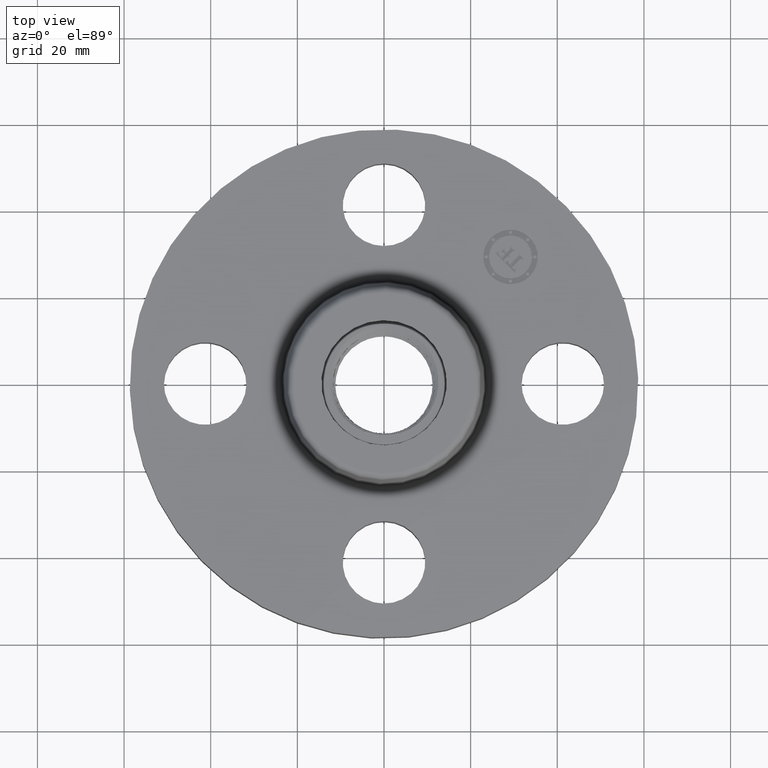
[diagram: clean part render]
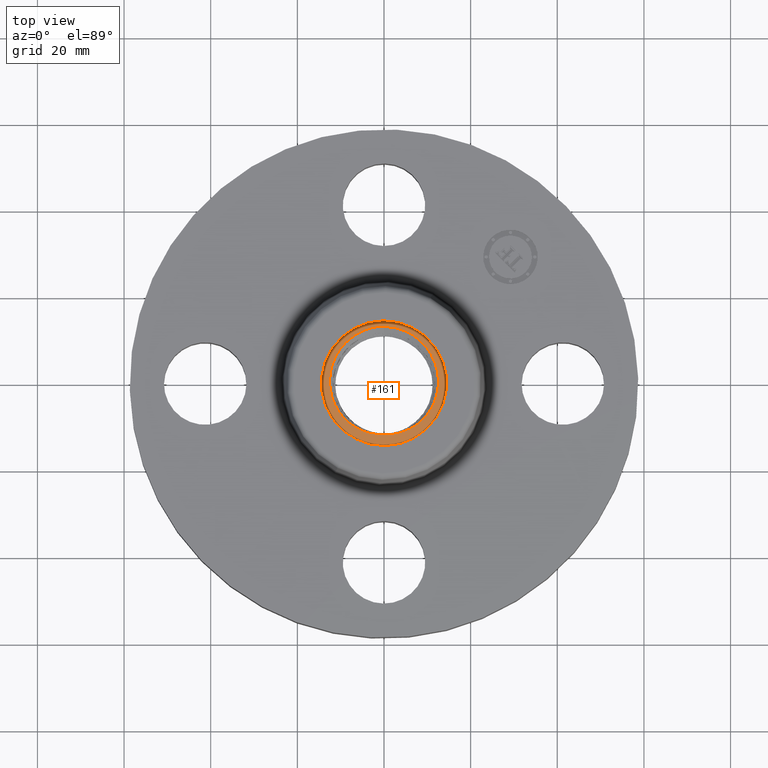
[diagram: same view with one face highlighted and labeled with its STEP entity id]
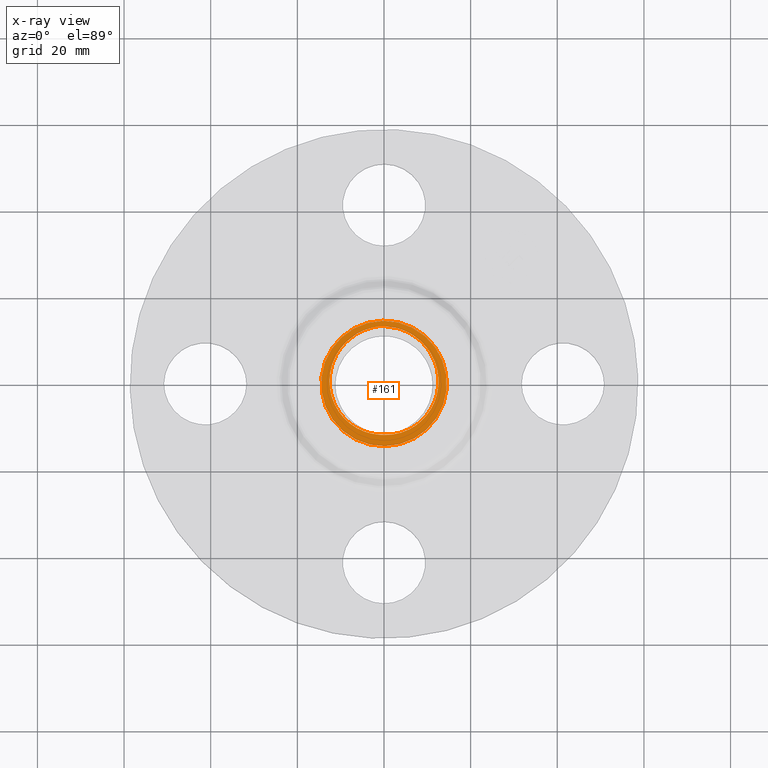
[diagram: x-ray of the same camera — body ghosted, the highlighted face saturated]
A machine part, top view. The second image highlights one B-rep face of the part: STEP entity #161.
The next image is the same camera in x-ray: the body ghosted, the highlighted face saturated — about 0% of this face is hidden behind the body in this view.
In plain terms, the highlighted planar face has unit normal (0, 0, 1).
Its self-contained STEP definition (entity closure, byte-faithful):
#38=AXIS2_PLACEMENT_3D('Plane Axis2P3D',#35,#36,#37) ;
#42=AXIS2_PLACEMENT_3D('Circle Axis2P3D',#40,#41,$) ;
#51=AXIS2_PLACEMENT_3D('Circle Axis2P3D',#49,#50,$) ;
#60=AXIS2_PLACEMENT_3D('Circle Axis2P3D',#58,#59,$) ;
#35=CARTESIAN_POINT('Axis2P3D Location',(1.92322098754E-017,-2.08057543197E-016,0.620000000002)) ;
#40=CARTESIAN_POINT('Axis2P3D Location',(0.,0.,0.620000000002)) ;
#44=CARTESIAN_POINT('Vertex',(-0.273272557005,0.50022206028,0.620000000002)) ;
#46=CARTESIAN_POINT('Vertex',(0.273272557005,-0.50022206028,0.620000000002)) ;
#49=CARTESIAN_POINT('Axis2P3D Location',(0.,0.,0.620000000002)) ;
#58=CARTESIAN_POINT('Axis2P3D Location',(8.91675185132E-017,1.74838271595E-018,0.620000000002)) ;
#62=CARTESIAN_POINT('Vertex',(-0.068839978589,-0.462087089928,0.620000369278)) ;
#64=CARTESIAN_POINT('Vertex',(-0.000898178339449,-0.467185819747,0.619999532507)) ;
#68=CARTESIAN_POINT('Control Point',(-0.246874648732,0.451904577731,0.620000000002)) ;
#69=CARTESIAN_POINT('Control Point',(-0.286886762116,0.428073842957,0.620000000002)) ;
#70=CARTESIAN_POINT('Control Point',(-0.324120647656,0.399765660782,0.620000000002)) ;
#71=CARTESIAN_POINT('Control Point',(-0.357892654681,0.367403258652,0.620000000002)) ;
#72=CARTESIAN_POINT('Control Point',(-0.417367399325,0.295716882805,0.620000000002)) ;
#73=CARTESIAN_POINT('Control Point',(-0.458982019344,0.212846321093,0.620000000002)) ;
#74=CARTESIAN_POINT('Control Point',(-0.47490507025,0.169278461644,0.620000000002)) ;
#75=CARTESIAN_POINT('Control Point',(-0.494276148442,0.0884506111846,0.620000000002)) ;
#76=CARTESIAN_POINT('Control Point',(-0.496660778963,0.00587605608425,0.620000000002)) ;
#77=CARTESIAN_POINT('Control Point',(-0.494322374897,-0.030755692729,0.620000000002)) ;
#78=CARTESIAN_POINT('Control Point',(-0.481489084201,-0.112076148046,0.620000000002)) ;
#79=CARTESIAN_POINT('Control Point',(-0.452185524238,-0.18886634889,0.620000000002)) ;
#80=CARTESIAN_POINT('Control Point',(-0.431040429284,-0.229332536847,0.620000000002)) ;
#81=CARTESIAN_POINT('Control Point',(-0.379827315566,-0.304424614107,0.620000000002)) ;
#82=CARTESIAN_POINT('Control Point',(-0.313003536653,-0.365360656011,0.620000000002)) ;
#83=CARTESIAN_POINT('Control Point',(-0.276223289394,-0.39169518772,0.620000000002)) ;
#84=CARTESIAN_POINT('Control Point',(-0.213555473893,-0.426195268053,0.620000000002)) ;
#85=CARTESIAN_POINT('Control Point',(-0.146132862422,-0.448271848675,0.620000000002)) ;
#86=CARTESIAN_POINT('Control Point',(-0.120639784493,-0.454688681232,0.620000000002)) ;
#87=CARTESIAN_POINT('Control Point',(-0.0948185216874,-0.459298425507,0.620000000002)) ;
#88=CARTESIAN_POINT('Control Point',(-0.068839884415,-0.462086547274,0.620000000002)) ;
#89=CARTESIAN_POINT('Vertex',(-0.246874648732,0.451904577731,0.620000000002)) ;
#93=CARTESIAN_POINT('Control Point',(-0.0410006483545,0.521404251777,0.620000000002)) ;
#94=CARTESIAN_POINT('Control Point',(-0.0846543580577,0.516358271891,0.620000000002)) ;
#95=CARTESIAN_POINT('Control Point',(-0.127698243751,0.506733058995,0.620000000002)) ;
#96=CARTESIAN_POINT('Control Point',(-0.169496933549,0.492611927267,0.620000000002)) ;
#97=CARTESIAN_POINT('Control Point',(-0.209404054129,0.474221614358,0.620000000002)) ;
#98=CARTESIAN_POINT('Control Point',(-0.246874648732,0.451904577731,0.620000000002)) ;
#99=CARTESIAN_POINT('Vertex',(-0.0410006483545,0.521404251777,0.620000000002)) ;
#103=CARTESIAN_POINT('Control Point',(-0.0410006483545,0.521404251777,0.620000000002)) ;
#104=CARTESIAN_POINT('Control Point',(-0.0328024593148,0.521776407967,0.620000000002)) ;
#105=CARTESIAN_POINT('Control Point',(-0.0245994759223,0.521987545749,0.620000000002)) ;
#106=CARTESIAN_POINT('Control Point',(-0.0163903534695,0.522037517245,0.620000000002)) ;
#107=CARTESIAN_POINT('Control Point',(-0.0081904189629,0.521926289061,0.620000000002)) ;
#108=CARTESIAN_POINT('Control Point',(1.69015948756E-006,0.521654154517,0.620000000002)) ;
#109=CARTESIAN_POINT('Vertex',(1.69015948752E-006,0.521654154517,0.620000000002)) ;
#113=CARTESIAN_POINT('Control Point',(1.69015948747E-006,0.521654154517,0.620000000002)) ;
#114=CARTESIAN_POINT('Control Point',(0.0468492614383,0.520097920164,0.620000000002)) ;
#115=CARTESIAN_POINT('Control Point',(0.0934409460576,0.513279597306,0.620000000002)) ;
#116=CARTESIAN_POINT('Control Point',(0.138979565603,0.501235788199,0.620000000002)) ;
#117=CARTESIAN_POINT('Control Point',(0.226384868484,0.46714218156,0.620000000002)) ;
#118=CARTESIAN_POINT('Control Point',(0.30366173971,0.414564695279,0.620000000002)) ;
#119=CARTESIAN_POINT('Control Point',(0.339076609563,0.384031918595,0.620000000002)) ;
#120=CARTESIAN_POINT('Control Point',(0.402203713653,0.315590744163,0.620000000002)) ;
#121=CARTESIAN_POINT('Control Point',(0.448124593817,0.234963260779,0.620000000002)) ;
#122=CARTESIAN_POINT('Control Point',(0.466316103219,0.192262737431,0.620000000002)) ;
#123=CARTESIAN_POINT('Control Point',(0.492522393333,0.103625939105,0.620000000002)) ;
#124=CARTESIAN_POINT('Control Point',(0.497890258999,0.0117178858739,0.620000000002)) ;
#125=CARTESIAN_POINT('Control Point',(0.495238542506,-0.0342394942268,0.620000000002)) ;
#126=CARTESIAN_POINT('Control Point',(0.47939638502,-0.124523846402,0.620000000002)) ;
#127=CARTESIAN_POINT('Control Point',(0.443463961424,-0.208436500814,0.620000000002)) ;
#128=CARTESIAN_POINT('Control Point',(0.420716048762,-0.248034010608,0.620000000002)) ;
#129=CARTESIAN_POINT('Control Point',(0.373273050154,-0.311953340837,0.620000000002)) ;
#130=CARTESIAN_POINT('Control Point',(0.314242612903,-0.364604475778,0.620000000002)) ;
#131=CARTESIAN_POINT('Control Point',(0.287038828451,-0.38486112576,0.620000000002)) ;
#132=CARTESIAN_POINT('Control Point',(0.25823366351,-0.40258668676,0.620000000002)) ;
#133=CARTESIAN_POINT('Control Point',(0.228147865563,-0.417627779028,0.620000000002)) ;
#134=CARTESIAN_POINT('Vertex',(0.228147865563,-0.417627779028,0.620000000002)) ;
#138=CARTESIAN_POINT('Control Point',(0.228147865563,-0.417627779028,0.620000000002)) ;
#139=CARTESIAN_POINT('Control Point',(0.185747229443,-0.43882555077,0.620000000002)) ;
#140=CARTESIAN_POINT('Control Point',(0.140802999812,-0.454691435773,0.620000000002)) ;
#141=CARTESIAN_POINT('Control Point',(0.0941833336064,-0.464804896038,0.620000000002)) ;
#142=CARTESIAN_POINT('Control Point',(0.0469240701567,-0.468959843771,0.620000000002)) ;
#143=CARTESIAN_POINT('Control Point',(-3.33307480611E-006,-0.467219173195,0.620000000002)) ;
#144=CARTESIAN_POINT('Vertex',(-3.33402644932E-006,-0.467187363299,0.620021298331)) ;
#147=CARTESIAN_POINT('Line Origine',(-0.000450757763134,-0.4671858929,0.620000000002)) ;
#36=DIRECTION('Axis2P3D Direction',(0.,0.,0.0393700787402)) ;
#37=DIRECTION('Axis2P3D XDirection',(0.0393700787402,0.,0.)) ;
#41=DIRECTION('Axis2P3D Direction',(0.,0.,0.0393700787402)) ;
#50=DIRECTION('Axis2P3D Direction',(0.,0.,0.0393700787402)) ;
#59=DIRECTION('Axis2P3D Direction',(0.,0.,0.0393700787402)) ;
#148=DIRECTION('Vector Direction',(-0.0393700201683,6.79113696972E-005,0.)) ;
#149=VECTOR('Line Direction',#148,0.0393700787402) ;
#55=ORIENTED_EDGE('',*,*,#48,.T.) ;
#56=ORIENTED_EDGE('',*,*,#53,.T.) ;
#153=ORIENTED_EDGE('',*,*,#66,.F.) ;
#154=ORIENTED_EDGE('',*,*,#91,.F.) ;
#155=ORIENTED_EDGE('',*,*,#101,.F.) ;
#156=ORIENTED_EDGE('',*,*,#111,.T.) ;
#157=ORIENTED_EDGE('',*,*,#136,.T.) ;
#158=ORIENTED_EDGE('',*,*,#146,.T.) ;
#159=ORIENTED_EDGE('',*,*,#151,.F.) ;
#160=FACE_BOUND('',#152,.T.) ;
#161=ADVANCED_FACE('PartBody',(#57,#160),#39,.T.) ;
#67=B_SPLINE_CURVE_WITH_KNOTS('',5,(#68,#69,#70,#71,#72,#73,#74,#75,#76,#77,#78,#79,#80,#81,#82,#83,#84,#85,#86,#87,#88),.UNSPECIFIED.,.F.,.U.,(6,3,3,3,3,3,6),(0.,8.210049659,16.4243281813,22.9948597042,31.2076098344,39.4271418915,44.270174768),.UNSPECIFIED.) ;
#92=B_SPLINE_CURVE_WITH_KNOTS('',5,(#93,#94,#95,#96,#97,#98),.UNSPECIFIED.,.F.,.U.,(6,6),(0.,7.68855769544),.UNSPECIFIED.) ;
#102=B_SPLINE_CURVE_WITH_KNOTS('',5,(#103,#104,#105,#106,#107,#108),.UNSPECIFIED.,.F.,.U.,(6,6),(0.,1.43579671245),.UNSPECIFIED.) ;
#112=B_SPLINE_CURVE_WITH_KNOTS('',5,(#113,#114,#115,#116,#117,#118,#119,#120,#121,#122,#123,#124,#125,#126,#127,#128,#129,#130,#131,#132,#133),.UNSPECIFIED.,.F.,.U.,(6,3,3,3,3,3,6),(0.,8.21077793488,16.4225168915,24.6291590256,32.8327084161,41.0385377502,47.1994558595),.UNSPECIFIED.) ;
#137=B_SPLINE_CURVE_WITH_KNOTS('',5,(#138,#139,#140,#141,#142,#143),.UNSPECIFIED.,.F.,.U.,(6,6),(0.,8.68272954516),.UNSPECIFIED.) ;
#43=CIRCLE('generated circle',#42,0.570000000002) ;
#52=CIRCLE('generated circle',#51,0.570000000002) ;
#61=CIRCLE('generated circle',#60,0.467186697742) ;
#48=EDGE_CURVE('',#45,#47,#43,.T.) ;
#53=EDGE_CURVE('',#47,#45,#52,.T.) ;
#66=EDGE_CURVE('',#63,#65,#61,.T.) ;
#91=EDGE_CURVE('',#90,#63,#67,.T.) ;
#101=EDGE_CURVE('',#100,#90,#92,.T.) ;
#111=EDGE_CURVE('',#100,#110,#102,.T.) ;
#136=EDGE_CURVE('',#110,#135,#112,.T.) ;
#146=EDGE_CURVE('',#135,#145,#137,.T.) ;
#151=EDGE_CURVE('',#65,#145,#150,.F.) ;
#54=EDGE_LOOP('',(#55,#56)) ;
#152=EDGE_LOOP('',(#153,#154,#155,#156,#157,#158,#159)) ;
#57=FACE_OUTER_BOUND('',#54,.T.) ;
#150=LINE('Line',#147,#149) ;
#39=PLANE('',#38) ;
#45=VERTEX_POINT('',#44) ;
#47=VERTEX_POINT('',#46) ;
#63=VERTEX_POINT('',#62) ;
#65=VERTEX_POINT('',#64) ;
#90=VERTEX_POINT('',#89) ;
#100=VERTEX_POINT('',#99) ;
#110=VERTEX_POINT('',#109) ;
#135=VERTEX_POINT('',#134) ;
#145=VERTEX_POINT('',#144) ;